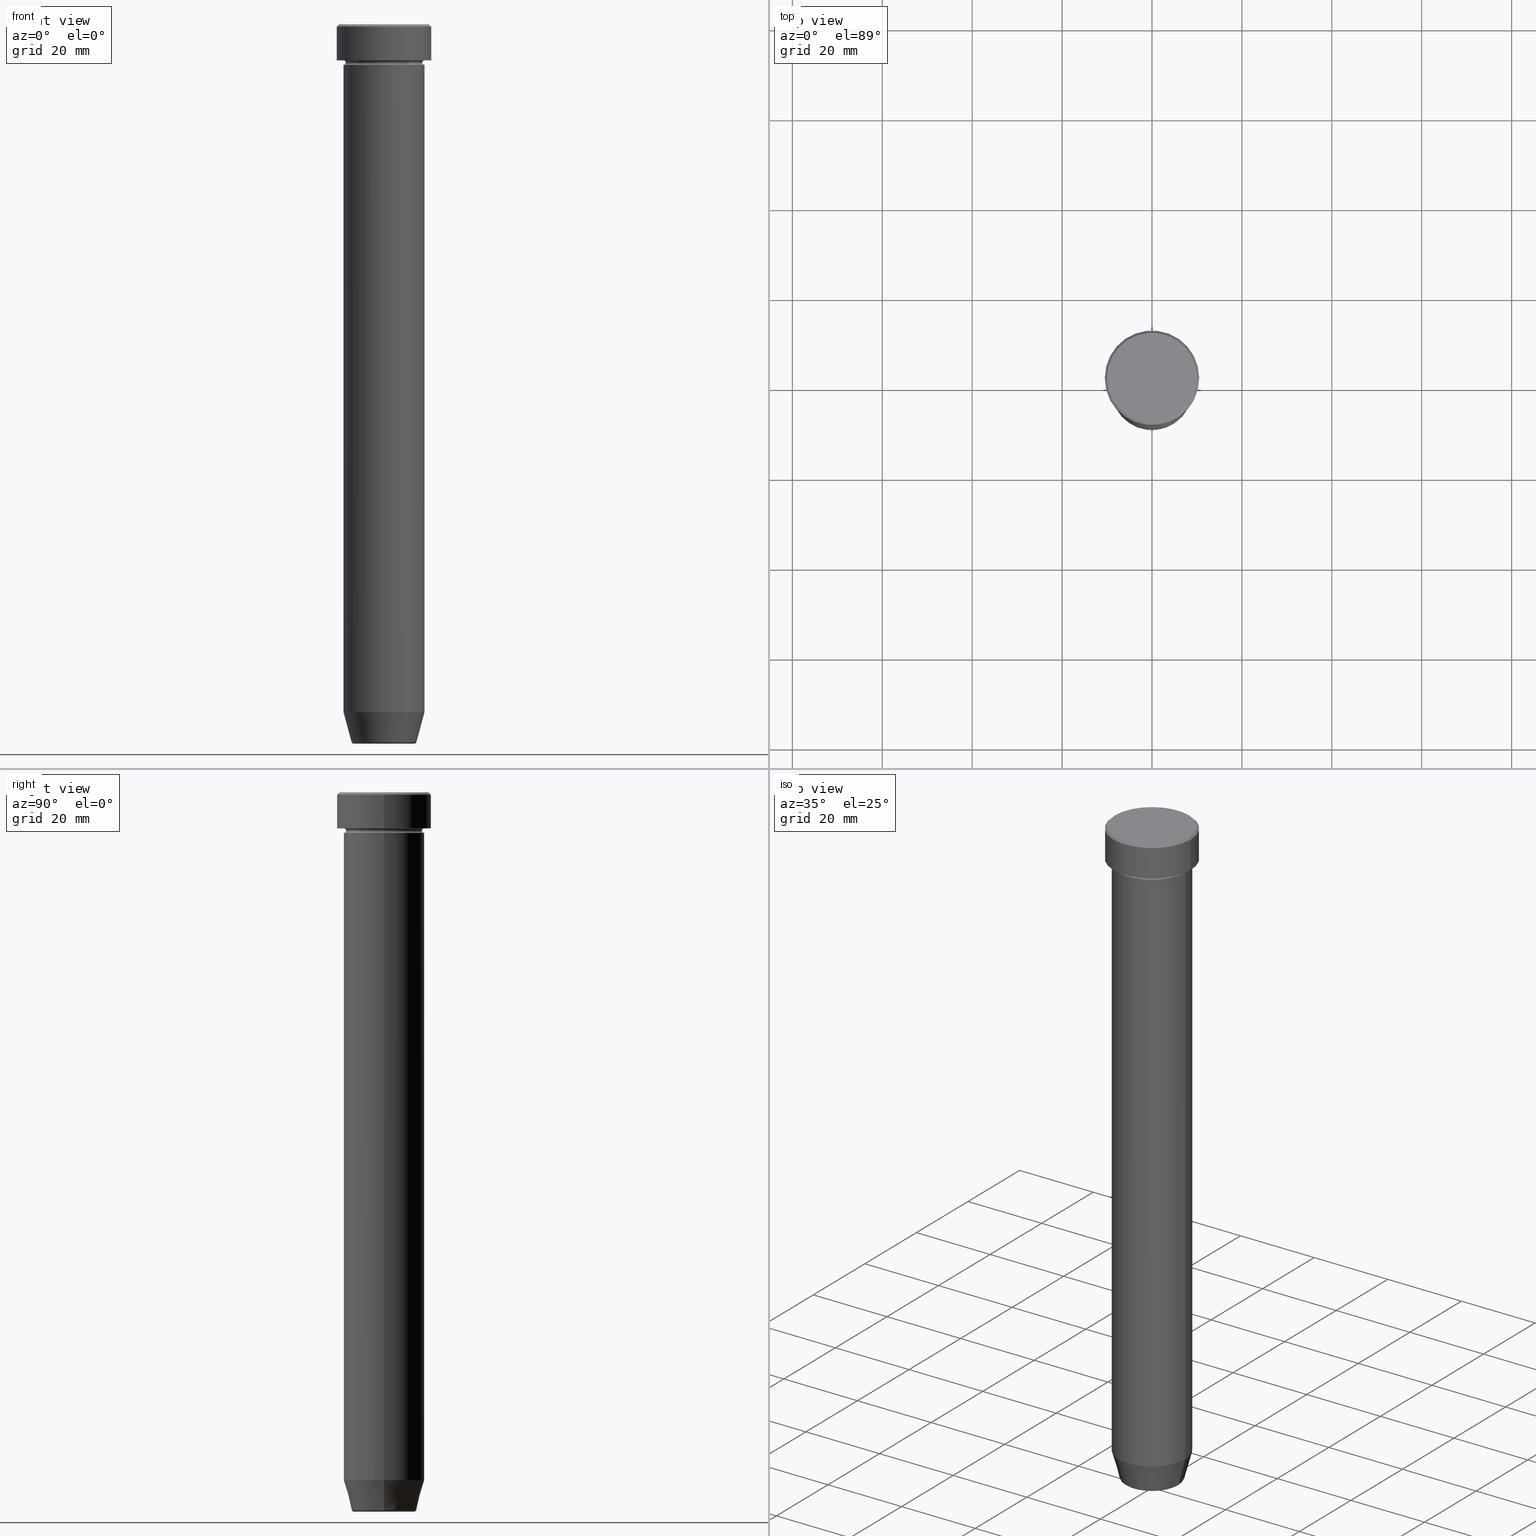
[diagram: canonical four-view strip — front | top / right | iso, engineering-drawing reading convention]
A machine part, canonical four-view strip (front | top / right | iso — engineering-drawing reading convention). The complete STEP part file that produces these views, byte-faithful:
ISO-10303-21;
HEADER;
FILE_DESCRIPTION (( 'STEP AP203' ),
    '1' );
FILE_NAME ('5149.STEP',
    '2024-01-02T22:07:08',
    ( '' ),
    ( '' ),
    'SwSTEP 2.0',
    'SolidWorks 2019',
    '' );
FILE_SCHEMA (( 'CONFIG_CONTROL_DESIGN' ));
ENDSEC;

DATA;
#1 = DIRECTION ( 'NONE',  ( -0.000000000000000000, -0.000000000000000000, 1.000000000000000000 ) ) ;
#2 = ORIENTED_EDGE ( 'NONE', *, *, #301, .F. ) ;
#3 = DIRECTION ( 'NONE',  ( -0.000000000000000000, -0.000000000000000000, 1.000000000000000000 ) ) ;
#4 = EDGE_CURVE ( 'NONE', #504, #593, #260, .T. ) ;
#5 = CARTESIAN_POINT ( 'NONE',  ( 0.000000000000000000, 0.000000000000000000, -160.0000000000000000 ) ) ;
#6 = CARTESIAN_POINT ( 'NONE',  ( 0.000000000000000000, 0.000000000000000000, -22.00000000000000000 ) ) ;
#7 = DIRECTION ( 'NONE',  ( 0.2588190451025212391, 0.000000000000000000, 0.9659258262890680902 ) ) ;
#8 = VERTEX_POINT ( 'NONE', #378 ) ;
#9 = AXIS2_PLACEMENT_3D ( 'NONE', #337, #519, #197 ) ;
#10 = CARTESIAN_POINT ( 'NONE',  ( -9.000000000000000000, 1.102182119232617714E-15, -9.000000000000001776 ) ) ;
#11 = COORDINATED_UNIVERSAL_TIME_OFFSET ( 1, 0, .AHEAD. ) ;
#12 = ADVANCED_FACE ( 'NONE', ( #192 ), #384, .F. ) ;
#13 = DIRECTION ( 'NONE',  ( 1.000000000000000000, 0.000000000000000000, 0.000000000000000000 ) ) ;
#14 = COORDINATED_UNIVERSAL_TIME_OFFSET ( 1, 0, .AHEAD. ) ;
#15 = CARTESIAN_POINT ( 'NONE',  ( 10.50000000000000000, 0.000000000000000000, -8.000000000000000000 ) ) ;
#16 = ORIENTED_EDGE ( 'NONE', *, *, #88, .T. ) ;
#17 = PERSON_AND_ORGANIZATION_ROLE ( 'design_supplier' ) ;
#18 = FACE_OUTER_BOUND ( 'NONE', #117, .T. ) ;
#19 = APPROVAL_PERSON_ORGANIZATION ( #455, #86, #39 ) ;
#20 = AXIS2_PLACEMENT_3D ( 'NONE', #241, #417, #590 ) ;
#21 = ORIENTED_EDGE ( 'NONE', *, *, #467, .T. ) ;
#22 = PLANE ( 'NONE',  #109 ) ;
#23 = ADVANCED_FACE ( 'NONE', ( #28 ), #141, .T. ) ;
#24 =( LENGTH_UNIT ( ) NAMED_UNIT ( * ) SI_UNIT ( .MILLI., .METRE. ) );
#25 = ORIENTED_EDGE ( 'NONE', *, *, #320, .F. ) ;
#26 = DIRECTION ( 'NONE',  ( 1.000000000000000000, 0.000000000000000000, 0.000000000000000000 ) ) ;
#27 = ORIENTED_EDGE ( 'NONE', *, *, #283, .T. ) ;
#28 = FACE_OUTER_BOUND ( 'NONE', #163, .T. ) ;
#29 = DIRECTION ( 'NONE',  ( 1.000000000000000000, 0.000000000000000000, 0.000000000000000000 ) ) ;
#30 = CC_DESIGN_PERSON_AND_ORGANIZATION_ASSIGNMENT ( #445, #17, ( #407 ) ) ;
#31 = FACE_OUTER_BOUND ( 'NONE', #115, .T. ) ;
#32 = CIRCLE ( 'NONE', #530, 0.5000000000000004441 ) ;
#33 = VERTEX_POINT ( 'NONE', #470 ) ;
#34 = ORIENTED_EDGE ( 'NONE', *, *, #409, .F. ) ;
#35 = EDGE_CURVE ( 'NONE', #398, #285, #134, .T. ) ;
#36 = CARTESIAN_POINT ( 'NONE',  ( 0.000000000000000000, 0.000000000000000000, -160.0000000000000000 ) ) ;
#37 = ORIENTED_EDGE ( 'NONE', *, *, #542, .F. ) ;
#38 = DIRECTION ( 'NONE',  ( -1.000000000000000000, -1.224646799147353454E-16, 0.000000000000000000 ) ) ;
#39 = APPROVAL_ROLE ( '' ) ;
#40 = CC_DESIGN_APPROVAL ( #86, ( #140 ) ) ;
#41 = AXIS2_PLACEMENT_3D ( 'NONE', #179, #538, #29 ) ;
#42 = AXIS2_PLACEMENT_3D ( 'NONE', #204, #159, #346 ) ;
#43 = ADVANCED_FACE ( 'NONE', ( #282 ), #588, .F. ) ;
#44 = CARTESIAN_POINT ( 'NONE',  ( 0.000000000000000000, 0.000000000000000000, -22.00000000000000000 ) ) ;
#45 = CARTESIAN_POINT ( 'NONE',  ( 9.000000000000000000, 0.000000000000000000, -8.500000000000000000 ) ) ;
#46 = ORIENTED_EDGE ( 'NONE', *, *, #343, .F. ) ;
#47 = ORGANIZATION ( 'NEUR�EN�', 'NEUR�EN�', '' ) ;
#48 = DIRECTION ( 'NONE',  ( 1.000000000000000000, 0.000000000000000000, 0.000000000000000000 ) ) ;
#49 = ADVANCED_FACE ( 'NONE', ( #253 ), #437, .T. ) ;
#50 = CIRCLE ( 'NONE', #143, 10.00000000000000178 ) ;
#51 = DIRECTION ( 'NONE',  ( -0.000000000000000000, -0.000000000000000000, 1.000000000000000000 ) ) ;
#52 = ORIENTED_EDGE ( 'NONE', *, *, #315, .T. ) ;
#53 = DIRECTION ( 'NONE',  ( 0.000000000000000000, 0.000000000000000000, -1.000000000000000000 ) ) ;
#54 = CARTESIAN_POINT ( 'NONE',  ( 0.000000000000000000, 0.000000000000000000, 0.000000000000000000 ) ) ;
#55 = DIRECTION ( 'NONE',  ( 1.000000000000000000, 0.000000000000000000, 0.000000000000000000 ) ) ;
#56 = DIRECTION ( 'NONE',  ( -1.000000000000000000, 0.000000000000000000, 0.000000000000000000 ) ) ;
#57 = DIRECTION ( 'NONE',  ( -0.000000000000000000, -0.000000000000000000, 1.000000000000000000 ) ) ;
#58 = EDGE_CURVE ( 'NONE', #226, #129, #527, .T. ) ;
#59 = DATE_TIME_ROLE ( 'creation_date' ) ;
#60 = AXIS2_PLACEMENT_3D ( 'NONE', #391, #66, #573 ) ;
#61 = AXIS2_PLACEMENT_3D ( 'NONE', #44, #286, #215 ) ;
#62 = CARTESIAN_POINT ( 'NONE',  ( 0.000000000000000000, 0.000000000000000000, -152.9999999999999716 ) ) ;
#63 = AXIS2_PLACEMENT_3D ( 'NONE', #446, #574, #399 ) ;
#64 = DIRECTION ( 'NONE',  ( -0.000000000000000000, -0.000000000000000000, 1.000000000000000000 ) ) ;
#65 = DIRECTION ( 'NONE',  ( -0.000000000000000000, -0.000000000000000000, 1.000000000000000000 ) ) ;
#66 = DIRECTION ( 'NONE',  ( 0.000000000000000000, 0.000000000000000000, -1.000000000000000000 ) ) ;
#67 = FACE_BOUND ( 'NONE', #211, .T. ) ;
#68 = CARTESIAN_POINT ( 'NONE',  ( 0.000000000000000000, 0.000000000000000000, -8.500000000000000000 ) ) ;
#69 = LINE ( 'NONE', #370, #200 ) ;
#70 = CC_DESIGN_PERSON_AND_ORGANIZATION_ASSIGNMENT ( #104, #266, ( #127 ) ) ;
#71 = CARTESIAN_POINT ( 'NONE',  ( -9.000000000000000000, 1.102182119232617714E-15, -152.9999999999999716 ) ) ;
#72 = ORIENTED_EDGE ( 'NONE', *, *, #225, .T. ) ;
#73 = CARTESIAN_POINT ( 'NONE',  ( 9.000000000000000000, 0.000000000000000000, 0.000000000000000000 ) ) ;
#74 = COORDINATED_UNIVERSAL_TIME_OFFSET ( 1, 0, .AHEAD. ) ;
#75 = DIRECTION ( 'NONE',  ( -0.000000000000000000, -0.000000000000000000, 1.000000000000000000 ) ) ;
#76 = ADVANCED_FACE ( 'NONE', ( #335 ), #388, .F. ) ;
#77 = ORIENTED_EDGE ( 'NONE', *, *, #167, .T. ) ;
#78 = ORIENTED_EDGE ( 'NONE', *, *, #374, .T. ) ;
#79 = CARTESIAN_POINT ( 'NONE',  ( 0.000000000000000000, 0.000000000000000000, -22.00000000000000000 ) ) ;
#80 = AXIS2_PLACEMENT_3D ( 'NONE', #45, #418, #514 ) ;
#81 = VERTEX_POINT ( 'NONE', #10 ) ;
#82 = CC_DESIGN_SECURITY_CLASSIFICATION ( #140, ( #407 ) ) ;
#83 = AXIS2_PLACEMENT_3D ( 'NONE', #353, #558, #304 ) ;
#84 = APPROVAL_DATE_TIME ( #324, #86 ) ;
#85 = CIRCLE ( 'NONE', #63, 6.740692158992650285 ) ;
#86 = APPROVAL ( #539, 'NEUR�EN�' ) ;
#87 = CARTESIAN_POINT ( 'NONE',  ( 0.000000000000000000, 0.000000000000000000, 0.000000000000000000 ) ) ;
#88 = EDGE_CURVE ( 'NONE', #8, #454, #199, .T. ) ;
#89 = AXIS2_PLACEMENT_3D ( 'NONE', #5, #53, #390 ) ;
#90 = DIRECTION ( 'NONE',  ( 0.000000000000000000, 0.000000000000000000, -1.000000000000000000 ) ) ;
#91 = EDGE_LOOP ( 'NONE', ( #95, #169, #480, #444 ) ) ;
#92 = DIRECTION ( 'NONE',  ( -1.000000000000000000, 0.000000000000000000, -0.000000000000000000 ) ) ;
#93 = VERTEX_POINT ( 'NONE', #427 ) ;
#94 = ADVANCED_FACE ( 'NONE', ( #570 ), #269, .T. ) ;
#95 = ORIENTED_EDGE ( 'NONE', *, *, #439, .F. ) ;
#96 = PLANE ( 'NONE',  #350 ) ;
#97 = VERTEX_POINT ( 'NONE', #484 ) ;
#98 = CARTESIAN_POINT ( 'NONE',  ( -9.000000000000000000, 0.000000000000000000, -8.500000000000000000 ) ) ;
#99 = CARTESIAN_POINT ( 'NONE',  ( 0.000000000000000000, 0.000000000000000000, -8.000000000000000000 ) ) ;
#100 = ORIENTED_EDGE ( 'NONE', *, *, #456, .T. ) ;
#101 = CARTESIAN_POINT ( 'NONE',  ( -6.740692158992650285, 8.254967076548010394E-16, -159.5000000000000000 ) ) ;
#102 = ORIENTED_EDGE ( 'NONE', *, *, #333, .T. ) ;
#103 = ORIENTED_EDGE ( 'NONE', *, *, #301, .T. ) ;
#104 = PERSON_AND_ORGANIZATION ( #183, #47 ) ;
#105 = ORIENTED_EDGE ( 'NONE', *, *, #550, .F. ) ;
#106 = DIRECTION ( 'NONE',  ( -1.000000000000000000, 1.224646799147351482E-16, 0.000000000000000000 ) ) ;
#107 = ADVANCED_FACE ( 'NONE', ( #293 ), #516, .T. ) ;
#108 = APPROVAL_ROLE ( '' ) ;
#109 = AXIS2_PLACEMENT_3D ( 'NONE', #402, #90, #92 ) ;
#110 = CARTESIAN_POINT ( 'NONE',  ( 8.499999999999998224, 0.000000000000000000, -8.500000000000000000 ) ) ;
#111 = CIRCLE ( 'NONE', #42, 10.50000000000000000 ) ;
#112 = ORIENTED_EDGE ( 'NONE', *, *, #578, .F. ) ;
#113 = ORIENTED_EDGE ( 'NONE', *, *, #491, .T. ) ;
#114 =( NAMED_UNIT ( * ) PLANE_ANGLE_UNIT ( ) SI_UNIT ( $, .RADIAN. ) );
#115 = EDGE_LOOP ( 'NONE', ( #309, #495, #231, #466 ) ) ;
#116 = DIRECTION ( 'NONE',  ( -0.000000000000000000, -0.000000000000000000, 1.000000000000000000 ) ) ;
#117 = EDGE_LOOP ( 'NONE', ( #136, #166, #139, #582 ) ) ;
#118 = APPLICATION_PROTOCOL_DEFINITION ( 'international standard', 'config_control_design', 1994, #364 ) ;
#119 = EDGE_CURVE ( 'NONE', #81, #97, #229, .T. ) ;
#120 = CARTESIAN_POINT ( 'NONE',  ( 0.000000000000000000, 0.000000000000000000, 0.000000000000000000 ) ) ;
#121 = COORDINATED_UNIVERSAL_TIME_OFFSET ( 1, 0, .AHEAD. ) ;
#122 = ORIENTED_EDGE ( 'NONE', *, *, #566, .T. ) ;
#123 = CARTESIAN_POINT ( 'NONE',  ( -9.000000000000000000, 1.102182119232617714E-15, 0.000000000000000000 ) ) ;
#124 = VECTOR ( 'NONE', #276, 1000.000000000000000 ) ;
#125 = ORIENTED_EDGE ( 'NONE', *, *, #58, .T. ) ;
#126 = CARTESIAN_POINT ( 'NONE',  ( 10.00000000000000178, 1.224646799147353454E-15, 0.000000000000000000 ) ) ;
#127 = PRODUCT_DEFINITION ( 'NEZN�M�', '', #407, #373 ) ;
#128 = CARTESIAN_POINT ( 'NONE',  ( 10.50000000000000000, 0.000000000000000000, -0.5000000000000023315 ) ) ;
#129 = VERTEX_POINT ( 'NONE', #265 ) ;
#130 = CALENDAR_DATE ( 2024, 2, 1 ) ;
#131 = DIRECTION ( 'NONE',  ( -0.000000000000000000, -0.000000000000000000, 1.000000000000000000 ) ) ;
#132 = TOROIDAL_SURFACE ( 'NONE', #397, 9.000000000000000000, 0.5000000000000000000 ) ;
#133 = ORIENTED_EDGE ( 'NONE', *, *, #333, .F. ) ;
#134 = CIRCLE ( 'NONE', #41, 9.000000000000000000 ) ;
#135 = CIRCLE ( 'NONE', #599, 9.000000000000000000 ) ;
#136 = ORIENTED_EDGE ( 'NONE', *, *, #546, .T. ) ;
#137 = DATE_AND_TIME ( #177, #336 ) ;
#138 = EDGE_CURVE ( 'NONE', #547, #222, #598, .T. ) ;
#139 = ORIENTED_EDGE ( 'NONE', *, *, #274, .T. ) ;
#140 = SECURITY_CLASSIFICATION ( '', '', #368 ) ;
#141 = TOROIDAL_SURFACE ( 'NONE', #20, 6.740692158992650285, 0.5000000000000000000 ) ;
#142 = CARTESIAN_POINT ( 'NONE',  ( -10.50000000000000000, 1.285879139104720831E-15, -8.000000000000000000 ) ) ;
#143 = AXIS2_PLACEMENT_3D ( 'NONE', #261, #440, #13 ) ;
#144 = EDGE_CURVE ( 'NONE', #367, #81, #157, .T. ) ;
#145 = DIRECTION ( 'NONE',  ( -0.000000000000000000, -0.000000000000000000, 1.000000000000000000 ) ) ;
#146 = ORIENTED_EDGE ( 'NONE', *, *, #225, .F. ) ;
#147 = LINE ( 'NONE', #557, #499 ) ;
#148 = CARTESIAN_POINT ( 'NONE',  ( 0.000000000000000000, 0.000000000000000000, -9.000000000000001776 ) ) ;
#149 = PRODUCT_DEFINITION_SHAPE ( 'NONE', 'NONE',  #127 ) ;
#150 = AXIS2_PLACEMENT_3D ( 'NONE', #158, #154, #403 ) ;
#151 = CARTESIAN_POINT ( 'NONE',  ( 9.000000000000000000, 1.102182119232617714E-15, -8.500000000000000000 ) ) ;
#152 = CARTESIAN_POINT ( 'NONE',  ( -7.124355652982127474, 8.724819346411914255E-16, -160.0000000000000000 ) ) ;
#153 = CARTESIAN_POINT ( 'NONE',  ( 9.000000000000000000, 1.102182119232617714E-15, -8.000000000000000000 ) ) ;
#154 = DIRECTION ( 'NONE',  ( 0.000000000000000000, 0.000000000000000000, 1.000000000000000000 ) ) ;
#155 = MANIFOLD_SOLID_BREP ( 'Zaoblit4', #561 ) ;
#156 = EDGE_CURVE ( 'NONE', #593, #393, #352, .T. ) ;
#157 = LINE ( 'NONE', #248, #300 ) ;
#158 = CARTESIAN_POINT ( 'NONE',  ( 0.000000000000000000, 0.000000000000000000, 0.000000000000000000 ) ) ;
#159 = DIRECTION ( 'NONE',  ( 0.000000000000000000, 0.000000000000000000, -1.000000000000000000 ) ) ;
#160 = CARTESIAN_POINT ( 'NONE',  ( 0.000000000000000000, 0.000000000000000000, 0.000000000000000000 ) ) ;
#161 = PERSON_AND_ORGANIZATION_ROLE ( 'creator' ) ;
#162 = CIRCLE ( 'NONE', #563, 0.5000000000000004441 ) ;
#163 = EDGE_LOOP ( 'NONE', ( #146, #25, #432, #187 ) ) ;
#164 = CARTESIAN_POINT ( 'NONE',  ( -10.00000000000000178, 0.000000000000000000, 0.000000000000000000 ) ) ;
#165 = VECTOR ( 'NONE', #233, 1000.000000000000000 ) ;
#166 = ORIENTED_EDGE ( 'NONE', *, *, #447, .T. ) ;
#167 = EDGE_CURVE ( 'NONE', #129, #547, #174, .T. ) ;
#168 = DIRECTION ( 'NONE',  ( -0.000000000000000000, -0.000000000000000000, 1.000000000000000000 ) ) ;
#169 = ORIENTED_EDGE ( 'NONE', *, *, #505, .T. ) ;
#170 =( NAMED_UNIT ( * ) SI_UNIT ( $, .STERADIAN. ) SOLID_ANGLE_UNIT ( ) );
#171 = DIRECTION ( 'NONE',  ( -1.000000000000000000, 0.000000000000000000, 0.000000000000000000 ) ) ;
#172 = ORIENTED_EDGE ( 'NONE', *, *, #181, .T. ) ;
#173 = DIRECTION ( 'NONE',  ( 0.000000000000000000, 0.000000000000000000, -1.000000000000000000 ) ) ;
#174 = CIRCLE ( 'NONE', #581, 0.5000000000000004441 ) ;
#175 = DIRECTION ( 'NONE',  ( 1.000000000000000000, 0.000000000000000000, 0.000000000000000000 ) ) ;
#176 = ORIENTED_EDGE ( 'NONE', *, *, #566, .F. ) ;
#177 = CALENDAR_DATE ( 2024, 2, 1 ) ;
#178 = CARTESIAN_POINT ( 'NONE',  ( -9.000000000000000000, 1.102182119232617714E-15, -22.00000000000000000 ) ) ;
#179 = CARTESIAN_POINT ( 'NONE',  ( 0.000000000000000000, 0.000000000000000000, -22.00000000000000000 ) ) ;
#180 = AXIS2_PLACEMENT_3D ( 'NONE', #160, #339, #394 ) ;
#181 = EDGE_CURVE ( 'NONE', #408, #367, #303, .T. ) ;
#182 = ORIENTED_EDGE ( 'NONE', *, *, #138, .T. ) ;
#183 = PERSON ( 'NEUR�EN�', 'NEUR�EN�', 'NEUR�EN�', ('NEUR�EN�'), ('NEUR�EN�'), ('NEUR�EN�') ) ;
#184 = CARTESIAN_POINT ( 'NONE',  ( -6.740692158992650285, 8.550696569392675821E-16, -160.0000000000000000 ) ) ;
#185 = ADVANCED_FACE ( 'NONE', ( #342 ), #531, .T. ) ;
#186 = AXIS2_PLACEMENT_3D ( 'NONE', #321, #145, #194 ) ;
#187 = ORIENTED_EDGE ( 'NONE', *, *, #315, .F. ) ;
#188 = CYLINDRICAL_SURFACE ( 'NONE', #325, 9.000000000000000000 ) ;
#189 = AXIS2_PLACEMENT_3D ( 'NONE', #385, #65, #565 ) ;
#190 = CC_DESIGN_PERSON_AND_ORGANIZATION_ASSIGNMENT ( #544, #232, ( #140 ) ) ;
#191 = LINE ( 'NONE', #471, #277 ) ;
#192 = FACE_OUTER_BOUND ( 'NONE', #498, .T. ) ;
#193 = DIRECTION ( 'NONE',  ( 1.000000000000000000, 0.000000000000000000, 0.000000000000000000 ) ) ;
#194 = DIRECTION ( 'NONE',  ( 1.000000000000000000, 0.000000000000000000, 0.000000000000000000 ) ) ;
#195 = CYLINDRICAL_SURFACE ( 'NONE', #189, 10.50000000000000000 ) ;
#196 = CIRCLE ( 'NONE', #474, 7.223655072137178834 ) ;
#197 = DIRECTION ( 'NONE',  ( 1.000000000000000000, 0.000000000000000000, 0.000000000000000000 ) ) ;
#198 = ADVANCED_FACE ( 'NONE', ( #523 ), #195, .T. ) ;
#199 = CIRCLE ( 'NONE', #517, 10.00000000000000178 ) ;
#200 = VECTOR ( 'NONE', #545, 1000.000000000000000 ) ;
#201 = CARTESIAN_POINT ( 'NONE',  ( 0.000000000000000000, 0.000000000000000000, 0.000000000000000000 ) ) ;
#202 = ORIENTED_EDGE ( 'NONE', *, *, #447, .F. ) ;
#203 = APPROVAL_STATUS ( 'not_yet_approved' ) ;
#204 = CARTESIAN_POINT ( 'NONE',  ( 0.000000000000000000, 0.000000000000000000, -0.5000000000000023315 ) ) ;
#205 = ORIENTED_EDGE ( 'NONE', *, *, #167, .F. ) ;
#206 = CARTESIAN_POINT ( 'NONE',  ( 0.000000000000000000, 0.000000000000000000, -0.5000000000000023315 ) ) ;
#207 = EDGE_CURVE ( 'NONE', #8, #534, #562, .T. ) ;
#208 = EDGE_LOOP ( 'NONE', ( #413, #316, #405, #205 ) ) ;
#209 = UNCERTAINTY_MEASURE_WITH_UNIT (LENGTH_MEASURE( 1.000000000000000082E-05 ), #24, 'distance_accuracy_value', 'NONE');
#210 = CALENDAR_DATE ( 2024, 2, 1 ) ;
#211 = EDGE_LOOP ( 'NONE', ( #182, #360 ) ) ;
#212 =( GEOMETRIC_REPRESENTATION_CONTEXT ( 3 ) GLOBAL_UNCERTAINTY_ASSIGNED_CONTEXT ( ( #209 ) ) GLOBAL_UNIT_ASSIGNED_CONTEXT ( ( #24, #114, #170 ) ) REPRESENTATION_CONTEXT ( 'NONE', 'WORKASPACE' ) );
#213 = CARTESIAN_POINT ( 'NONE',  ( 0.000000000000000000, 0.000000000000000000, -159.6294095225512706 ) ) ;
#214 = CONICAL_SURFACE ( 'NONE', #507, 7.124355652982127474, 0.2617993877991499629 ) ;
#215 = DIRECTION ( 'NONE',  ( -1.000000000000000000, 0.000000000000000000, -0.000000000000000000 ) ) ;
#216 = ORIENTED_EDGE ( 'NONE', *, *, #467, .F. ) ;
#217 = DIRECTION ( 'NONE',  ( 1.000000000000000000, 0.000000000000000000, 0.000000000000000000 ) ) ;
#218 = LINE ( 'NONE', #73, #124 ) ;
#219 = ORIENTED_EDGE ( 'NONE', *, *, #546, .F. ) ;
#220 = APPROVAL_ROLE ( '' ) ;
#221 = EDGE_LOOP ( 'NONE', ( #202, #122, #569, #584 ) ) ;
#222 = VERTEX_POINT ( 'NONE', #153 ) ;
#223 = DIRECTION ( 'NONE',  ( -0.000000000000000000, -0.000000000000000000, 1.000000000000000000 ) ) ;
#224 = EDGE_LOOP ( 'NONE', ( #369, #78, #2, #34 ) ) ;
#225 = EDGE_CURVE ( 'NONE', #528, #504, #327, .T. ) ;
#226 = VERTEX_POINT ( 'NONE', #110 ) ;
#227 = CARTESIAN_POINT ( 'NONE',  ( 0.000000000000000000, 0.000000000000000000, -8.500000000000000000 ) ) ;
#228 = CC_DESIGN_APPROVAL ( #236, ( #127 ) ) ;
#229 = CIRCLE ( 'NONE', #280, 9.000000000000000000 ) ;
#230 = CIRCLE ( 'NONE', #572, 9.000000000000000000 ) ;
#231 = ORIENTED_EDGE ( 'NONE', *, *, #207, .T. ) ;
#232 = PERSON_AND_ORGANIZATION_ROLE ( 'classification_officer' ) ;
#233 = DIRECTION ( 'NONE',  ( -0.000000000000000000, -0.000000000000000000, 1.000000000000000000 ) ) ;
#234 = CARTESIAN_POINT ( 'NONE',  ( -10.50000000000000000, 1.285879139104720831E-15, -0.5000000000000023315 ) ) ;
#235 = EDGE_LOOP ( 'NONE', ( #426, #112 ) ) ;
#236 = APPROVAL ( #345, 'NEUR�EN�' ) ;
#237 = AXIS2_PLACEMENT_3D ( 'NONE', #328, #596, #591 ) ;
#238 = CLOSED_SHELL ( 'NONE', ( #592, #382, #76, #49, #326, #185, #529, #198, #422, #509, #511, #586, #366 ) ) ;
#239 = CIRCLE ( 'NONE', #595, 9.000000000000000000 ) ;
#240 = ORIENTED_EDGE ( 'NONE', *, *, #542, .T. ) ;
#241 = CARTESIAN_POINT ( 'NONE',  ( 0.000000000000000000, 0.000000000000000000, -159.5000000000000000 ) ) ;
#242 = CC_DESIGN_PERSON_AND_ORGANIZATION_ASSIGNMENT ( #306, #483, ( #594 ) ) ;
#243 = CARTESIAN_POINT ( 'NONE',  ( -9.000000000000000000, 1.102182119232617714E-15, -8.500000000000000000 ) ) ;
#244 = CONICAL_SURFACE ( 'NONE', #60, 10.00000000000000178, 0.7853981633974447263 ) ;
#245 = FACE_OUTER_BOUND ( 'NONE', #465, .T. ) ;
#246 = ORIENTED_EDGE ( 'NONE', *, *, #4, .T. ) ;
#247 = CIRCLE ( 'NONE', #377, 9.000000000000000000 ) ;
#248 = CARTESIAN_POINT ( 'NONE',  ( -9.000000000000000000, 1.102182119232617714E-15, 0.000000000000000000 ) ) ;
#249 = CARTESIAN_POINT ( 'NONE',  ( 0.000000000000000000, 0.000000000000000000, -8.000000000000000000 ) ) ;
#250 = EDGE_LOOP ( 'NONE', ( #329, #100 ) ) ;
#251 = DIRECTION ( 'NONE',  ( -0.000000000000000000, -1.000000000000000000, -0.000000000000000000 ) ) ;
#252 = EDGE_CURVE ( 'NONE', #454, #8, #50, .T. ) ;
#253 = FACE_OUTER_BOUND ( 'NONE', #502, .T. ) ;
#254 = FACE_OUTER_BOUND ( 'NONE', #344, .T. ) ;
#255 = EDGE_LOOP ( 'NONE', ( #522, #52, #21, #462 ) ) ;
#256 = CARTESIAN_POINT ( 'NONE',  ( 0.000000000000000000, 0.000000000000000000, -8.500000000000000000 ) ) ;
#257 = CIRCLE ( 'NONE', #9, 10.50000000000000000 ) ;
#258 = DIRECTION ( 'NONE',  ( -1.000000000000000000, 0.000000000000000000, 0.000000000000000000 ) ) ;
#259 = AXIS2_PLACEMENT_3D ( 'NONE', #101, #296, #106 ) ;
#260 = LINE ( 'NONE', #152, #311 ) ;
#261 = CARTESIAN_POINT ( 'NONE',  ( 0.000000000000000000, 0.000000000000000000, 0.000000000000000000 ) ) ;
#262 = VERTEX_POINT ( 'NONE', #15 ) ;
#263 = PERSON_AND_ORGANIZATION ( #183, #47 ) ;
#264 = EDGE_CURVE ( 'NONE', #376, #534, #111, .T. ) ;
#265 = CARTESIAN_POINT ( 'NONE',  ( -8.499999999999998224, 1.071565949253933927E-15, -8.500000000000000000 ) ) ;
#266 = PERSON_AND_ORGANIZATION_ROLE ( 'creator' ) ;
#267 = DIRECTION ( 'NONE',  ( -1.000000000000000000, 0.000000000000000000, 0.000000000000000000 ) ) ;
#268 = FACE_OUTER_BOUND ( 'NONE', #356, .T. ) ;
#269 = TOROIDAL_SURFACE ( 'NONE', #361, 6.740692158992650285, 0.5000000000000000000 ) ;
#270 = CARTESIAN_POINT ( 'NONE',  ( 0.000000000000000000, 0.000000000000000000, -152.9999999999999716 ) ) ;
#271 = APPLICATION_PROTOCOL_DEFINITION ( 'international standard', 'config_control_design', 1994, #567 ) ;
#272 = EDGE_LOOP ( 'NONE', ( #240, #246, #459, #216 ) ) ;
#273 = DIRECTION ( 'NONE',  ( 1.000000000000000000, 0.000000000000000000, 0.000000000000000000 ) ) ;
#274 = EDGE_CURVE ( 'NONE', #534, #376, #362, .T. ) ;
#275 = DATE_TIME_ROLE ( 'classification_date' ) ;
#276 = DIRECTION ( 'NONE',  ( -0.000000000000000000, -0.000000000000000000, 1.000000000000000000 ) ) ;
#277 = VECTOR ( 'NONE', #7, 1000.000000000000114 ) ;
#278 = DIRECTION ( 'NONE',  ( -0.000000000000000000, -0.000000000000000000, 1.000000000000000000 ) ) ;
#279 = CIRCLE ( 'NONE', #379, 0.5000000000000004441 ) ;
#280 = AXIS2_PLACEMENT_3D ( 'NONE', #148, #51, #396 ) ;
#281 = AXIS2_PLACEMENT_3D ( 'NONE', #120, #75, #175 ) ;
#282 = FACE_OUTER_BOUND ( 'NONE', #250, .T. ) ;
#283 = EDGE_CURVE ( 'NONE', #454, #376, #317, .T. ) ;
#284 = CARTESIAN_POINT ( 'NONE',  ( 0.000000000000000000, 0.000000000000000000, -159.6294095225512706 ) ) ;
#285 = VERTEX_POINT ( 'NONE', #501 ) ;
#286 = DIRECTION ( 'NONE',  ( 0.000000000000000000, 0.000000000000000000, -1.000000000000000000 ) ) ;
#287 = APPROVAL_PERSON_ORGANIZATION ( #438, #428, #108 ) ;
#288 = TOROIDAL_SURFACE ( 'NONE', #237, 9.000000000000000000, 0.5000000000000000000 ) ;
#289 = FACE_OUTER_BOUND ( 'NONE', #224, .T. ) ;
#290 = CARTESIAN_POINT ( 'NONE',  ( -7.223655072137179722, 9.934123627281759193E-16, -159.6294095225512706 ) ) ;
#291 = DIRECTION ( 'NONE',  ( -0.000000000000000000, -0.000000000000000000, 1.000000000000000000 ) ) ;
#292 = ADVANCED_FACE ( 'NONE', ( #585 ), #487, .T. ) ;
#293 = FACE_OUTER_BOUND ( 'NONE', #485, .T. ) ;
#294 = ORIENTED_EDGE ( 'NONE', *, *, #35, .T. ) ;
#295 = DIRECTION ( 'NONE',  ( -0.000000000000000000, -0.000000000000000000, 1.000000000000000000 ) ) ;
#296 = DIRECTION ( 'NONE',  ( 1.224646799147353207E-16, 1.000000000000000000, 0.000000000000000000 ) ) ;
#297 = DATE_AND_TIME ( #497, #310 ) ;
#298 = ORIENTED_EDGE ( 'NONE', *, *, #144, .F. ) ;
#299 = DIRECTION ( 'NONE',  ( -0.7071067811865450192, 0.000000000000000000, -0.7071067811865500152 ) ) ;
#300 = VECTOR ( 'NONE', #564, 1000.000000000000000 ) ;
#301 = EDGE_CURVE ( 'NONE', #285, #398, #230, .T. ) ;
#302 = CALENDAR_DATE ( 2024, 2, 1 ) ;
#303 = CIRCLE ( 'NONE', #380, 9.000000000000000000 ) ;
#304 = DIRECTION ( 'NONE',  ( -1.000000000000000000, 0.000000000000000000, 0.000000000000000000 ) ) ;
#305 = EDGE_LOOP ( 'NONE', ( #219, #176 ) ) ;
#306 = PERSON_AND_ORGANIZATION ( #183, #47 ) ;
#307 = DIRECTION ( 'NONE',  ( 0.000000000000000000, 0.000000000000000000, -1.000000000000000000 ) ) ;
#308 = DATE_AND_TIME ( #210, #448 ) ;
#309 = ORIENTED_EDGE ( 'NONE', *, *, #283, .F. ) ;
#310 = LOCAL_TIME ( 23, 7, 8.000000000000000000, #11 ) ;
#311 = VECTOR ( 'NONE', #331, 1000.000000000000114 ) ;
#312 = DIRECTION ( 'NONE',  ( 1.000000000000000000, 0.000000000000000000, 0.000000000000000000 ) ) ;
#313 = CIRCLE ( 'NONE', #460, 7.223655072137178834 ) ;
#314 = DIRECTION ( 'NONE',  ( -0.000000000000000000, -0.000000000000000000, 1.000000000000000000 ) ) ;
#315 = EDGE_CURVE ( 'NONE', #504, #33, #313, .T. ) ;
#316 = ORIENTED_EDGE ( 'NONE', *, *, #550, .T. ) ;
#317 = LINE ( 'NONE', #126, #510 ) ;
#318 = CC_DESIGN_PERSON_AND_ORGANIZATION_ASSIGNMENT ( #263, #161, ( #407 ) ) ;
#319 = CARTESIAN_POINT ( 'NONE',  ( -9.000000000000000000, 1.102182119232617714E-15, -22.00000000000000000 ) ) ;
#320 = EDGE_CURVE ( 'NONE', #93, #528, #85, .T. ) ;
#321 = CARTESIAN_POINT ( 'NONE',  ( 0.000000000000000000, 0.000000000000000000, -8.500000000000000000 ) ) ;
#322 = AXIS2_PLACEMENT_3D ( 'NONE', #387, #307, #334 ) ;
#323 = ADVANCED_BREP_SHAPE_REPRESENTATION ( '5149', ( #372, #155, #150 ), #212 ) ;
#324 = DATE_AND_TIME ( #130, #552 ) ;
#325 = AXIS2_PLACEMENT_3D ( 'NONE', #476, #479, #381 ) ;
#326 = ADVANCED_FACE ( 'NONE', ( #18 ), #359, .T. ) ;
#327 = CIRCLE ( 'NONE', #259, 0.5000000000000004441 ) ;
#328 = CARTESIAN_POINT ( 'NONE',  ( 0.000000000000000000, 0.000000000000000000, -8.500000000000000000 ) ) ;
#329 = ORIENTED_EDGE ( 'NONE', *, *, #320, .T. ) ;
#330 = CYLINDRICAL_SURFACE ( 'NONE', #597, 9.000000000000000000 ) ;
#331 = DIRECTION ( 'NONE',  ( -0.2588190451025212391, 3.169619151431771721E-17, 0.9659258262890680902 ) ) ;
#332 = DIRECTION ( 'NONE',  ( -0.000000000000000000, -0.000000000000000000, 1.000000000000000000 ) ) ;
#333 = EDGE_CURVE ( 'NONE', #408, #97, #218, .T. ) ;
#334 = DIRECTION ( 'NONE',  ( -1.000000000000000000, 0.000000000000000000, -0.000000000000000000 ) ) ;
#335 = FACE_OUTER_BOUND ( 'NONE', #91, .T. ) ;
#336 = LOCAL_TIME ( 23, 7, 8.000000000000000000, #74 ) ;
#337 = CARTESIAN_POINT ( 'NONE',  ( 0.000000000000000000, 0.000000000000000000, -8.000000000000000000 ) ) ;
#338 = DIRECTION ( 'NONE',  ( -0.000000000000000000, -0.000000000000000000, 1.000000000000000000 ) ) ;
#339 = DIRECTION ( 'NONE',  ( -0.000000000000000000, -0.000000000000000000, 1.000000000000000000 ) ) ;
#340 = APPROVAL_DATE_TIME ( #308, #236 ) ;
#341 = ORIENTED_EDGE ( 'NONE', *, *, #207, .F. ) ;
#342 = FACE_OUTER_BOUND ( 'NONE', #235, .T. ) ;
#343 = EDGE_CURVE ( 'NONE', #93, #33, #32, .T. ) ;
#344 = EDGE_LOOP ( 'NONE', ( #298, #526, #102, #575 ) ) ;
#345 = APPROVAL_STATUS ( 'not_yet_approved' ) ;
#346 = DIRECTION ( 'NONE',  ( 1.000000000000000000, 0.000000000000000000, 0.000000000000000000 ) ) ;
#347 = ORIENTED_EDGE ( 'NONE', *, *, #358, .T. ) ;
#348 = AXIS2_PLACEMENT_3D ( 'NONE', #227, #173, #583 ) ;
#349 = ORIENTED_EDGE ( 'NONE', *, *, #274, .F. ) ;
#350 = AXIS2_PLACEMENT_3D ( 'NONE', #431, #375, #48 ) ;
#351 = ORIENTED_EDGE ( 'NONE', *, *, #482, .F. ) ;
#352 = CIRCLE ( 'NONE', #415, 9.000000000000000000 ) ;
#353 = CARTESIAN_POINT ( 'NONE',  ( 0.000000000000000000, 0.000000000000000000, -8.000000000000000000 ) ) ;
#354 = ORIENTED_EDGE ( 'NONE', *, *, #374, .F. ) ;
#355 = DIRECTION ( 'NONE',  ( 0.000000000000000000, 0.000000000000000000, -1.000000000000000000 ) ) ;
#356 = EDGE_LOOP ( 'NONE', ( #449, #27, #349, #341 ) ) ;
#357 = EDGE_LOOP ( 'NONE', ( #451, #500, #113, #347 ) ) ;
#358 = EDGE_CURVE ( 'NONE', #97, #81, #135, .T. ) ;
#359 = CYLINDRICAL_SURFACE ( 'NONE', #281, 10.50000000000000000 ) ;
#360 = ORIENTED_EDGE ( 'NONE', *, *, #482, .T. ) ;
#361 = AXIS2_PLACEMENT_3D ( 'NONE', #481, #3, #443 ) ;
#362 = CIRCLE ( 'NONE', #475, 10.50000000000000000 ) ;
#363 = CARTESIAN_POINT ( 'NONE',  ( 9.000000000000000000, 0.000000000000000000, -152.9999999999999716 ) ) ;
#364 = APPLICATION_CONTEXT ( 'configuration controlled 3d designs of mechanical parts and assemblies' ) ;
#365 = CARTESIAN_POINT ( 'NONE',  ( 0.000000000000000000, 0.000000000000000000, -9.000000000000001776 ) ) ;
#366 = ADVANCED_FACE ( 'NONE', ( #31 ), #469, .T. ) ;
#367 = VERTEX_POINT ( 'NONE', #178 ) ;
#368 = SECURITY_CLASSIFICATION_LEVEL ( 'unclassified' ) ;
#369 = ORIENTED_EDGE ( 'NONE', *, *, #416, .T. ) ;
#370 = CARTESIAN_POINT ( 'NONE',  ( 9.000000000000000000, 0.000000000000000000, 0.000000000000000000 ) ) ;
#371 = CARTESIAN_POINT ( 'NONE',  ( 0.000000000000000000, 1.347111479062088839E-14, -160.0000000000000000 ) ) ;
#372 = MANIFOLD_SOLID_BREP ( 'Zkosen�1', #238 ) ;
#373 = DESIGN_CONTEXT ( 'detailed design', #567, 'design' ) ;
#374 = EDGE_CURVE ( 'NONE', #593, #398, #532, .T. ) ;
#375 = DIRECTION ( 'NONE',  ( 0.000000000000000000, -0.000000000000000000, 1.000000000000000000 ) ) ;
#376 = VERTEX_POINT ( 'NONE', #128 ) ;
#377 = AXIS2_PLACEMENT_3D ( 'NONE', #270, #131, #492 ) ;
#378 = CARTESIAN_POINT ( 'NONE',  ( -10.00000000000000178, 0.000000000000000000, 0.000000000000000000 ) ) ;
#379 = AXIS2_PLACEMENT_3D ( 'NONE', #151, #551, #38 ) ;
#380 = AXIS2_PLACEMENT_3D ( 'NONE', #6, #116, #193 ) ;
#381 = DIRECTION ( 'NONE',  ( 1.000000000000000000, 0.000000000000000000, 0.000000000000000000 ) ) ;
#382 = ADVANCED_FACE ( 'NONE', ( #461 ), #555, .F. ) ;
#383 = CARTESIAN_POINT ( 'NONE',  ( -10.50000000000000000, 1.285879139104720831E-15, 0.000000000000000000 ) ) ;
#384 = PLANE ( 'NONE',  #61 ) ;
#385 = CARTESIAN_POINT ( 'NONE',  ( 0.000000000000000000, 0.000000000000000000, 0.000000000000000000 ) ) ;
#386 = CARTESIAN_POINT ( 'NONE',  ( 10.00000000000000178, 1.255262969126037241E-15, 0.000000000000000000 ) ) ;
#387 = CARTESIAN_POINT ( 'NONE',  ( 0.000000000000000000, 9.000000000000000000, -22.00000000000000000 ) ) ;
#388 = TOROIDAL_SURFACE ( 'NONE', #423, 9.000000000000000000, 0.5000000000000000000 ) ;
#389 = AXIS2_PLACEMENT_3D ( 'NONE', #576, #579, #273 ) ;
#390 = DIRECTION ( 'NONE',  ( 1.000000000000000000, 0.000000000000000000, 0.000000000000000000 ) ) ;
#391 = CARTESIAN_POINT ( 'NONE',  ( 0.000000000000000000, 0.000000000000000000, 0.000000000000000000 ) ) ;
#392 = DIRECTION ( 'NONE',  ( -0.000000000000000000, -0.000000000000000000, 1.000000000000000000 ) ) ;
#393 = VERTEX_POINT ( 'NONE', #363 ) ;
#394 = DIRECTION ( 'NONE',  ( 1.000000000000000000, 0.000000000000000000, 0.000000000000000000 ) ) ;
#395 = DATE_AND_TIME ( #302, #468 ) ;
#396 = DIRECTION ( 'NONE',  ( 1.000000000000000000, 0.000000000000000000, 0.000000000000000000 ) ) ;
#397 = AXIS2_PLACEMENT_3D ( 'NONE', #490, #533, #258 ) ;
#398 = VERTEX_POINT ( 'NONE', #319 ) ;
#399 = DIRECTION ( 'NONE',  ( 1.000000000000000000, 0.000000000000000000, 0.000000000000000000 ) ) ;
#400 = ADVANCED_FACE ( 'NONE', ( #506 ), #214, .T. ) ;
#401 = PERSON_AND_ORGANIZATION ( #183, #47 ) ;
#402 = CARTESIAN_POINT ( 'NONE',  ( 0.000000000000000000, 10.50000000000000000, -8.000000000000000000 ) ) ;
#403 = DIRECTION ( 'NONE',  ( 1.000000000000000000, 0.000000000000000000, 0.000000000000000000 ) ) ;
#404 = CC_DESIGN_DATE_AND_TIME_ASSIGNMENT ( #137, #275, ( #140 ) ) ;
#405 = ORIENTED_EDGE ( 'NONE', *, *, #138, .F. ) ;
#406 = CARTESIAN_POINT ( 'NONE',  ( 0.000000000000000000, 0.000000000000000000, 0.000000000000000000 ) ) ;
#407 = PRODUCT_DEFINITION_FORMATION_WITH_SPECIFIED_SOURCE ( 'LIBOVOLN�', '', #594, .NOT_KNOWN. ) ;
#408 = VERTEX_POINT ( 'NONE', #494 ) ;
#409 = EDGE_CURVE ( 'NONE', #393, #285, #69, .T. ) ;
#410 = VECTOR ( 'NONE', #299, 1000.000000000000000 ) ;
#411 = CARTESIAN_POINT ( 'NONE',  ( 6.740692158992650285, 0.000000000000000000, -159.5000000000000000 ) ) ;
#412 = DIRECTION ( 'NONE',  ( 1.000000000000000000, 0.000000000000000000, 0.000000000000000000 ) ) ;
#413 = ORIENTED_EDGE ( 'NONE', *, *, #439, .T. ) ;
#414 = CIRCLE ( 'NONE', #589, 9.000000000000000000 ) ;
#415 = AXIS2_PLACEMENT_3D ( 'NONE', #62, #392, #489 ) ;
#416 = EDGE_CURVE ( 'NONE', #393, #593, #247, .T. ) ;
#417 = DIRECTION ( 'NONE',  ( -0.000000000000000000, -0.000000000000000000, 1.000000000000000000 ) ) ;
#418 = DIRECTION ( 'NONE',  ( 0.000000000000000000, -1.000000000000000000, 0.000000000000000000 ) ) ;
#419 = DIRECTION ( 'NONE',  ( 1.224646799147353207E-16, 1.000000000000000000, 0.000000000000000000 ) ) ;
#420 = EDGE_LOOP ( 'NONE', ( #105, #125, #77, #351 ) ) ;
#421 = VECTOR ( 'NONE', #429, 1000.000000000000000 ) ;
#422 = ADVANCED_FACE ( 'NONE', ( #67, #450 ), #22, .T. ) ;
#423 = AXIS2_PLACEMENT_3D ( 'NONE', #256, #57, #433 ) ;
#424 = AXIS2_PLACEMENT_3D ( 'NONE', #406, #355, #171 ) ;
#425 = DIRECTION ( 'NONE',  ( -1.000000000000000000, 1.224646799147353454E-16, 0.000000000000000000 ) ) ;
#426 = ORIENTED_EDGE ( 'NONE', *, *, #181, .F. ) ;
#427 = CARTESIAN_POINT ( 'NONE',  ( 6.740692158992650285, 0.000000000000000000, -160.0000000000000000 ) ) ;
#428 = APPROVAL ( #203, 'NEUR�EN�' ) ;
#429 = DIRECTION ( 'NONE',  ( -0.000000000000000000, -0.000000000000000000, 1.000000000000000000 ) ) ;
#430 = DIRECTION ( 'NONE',  ( 0.000000000000000000, 0.000000000000000000, -1.000000000000000000 ) ) ;
#431 = CARTESIAN_POINT ( 'NONE',  ( 0.000000000000000000, 0.000000000000000000, 0.000000000000000000 ) ) ;
#432 = ORIENTED_EDGE ( 'NONE', *, *, #343, .T. ) ;
#433 = DIRECTION ( 'NONE',  ( 1.000000000000000000, 0.000000000000000000, 0.000000000000000000 ) ) ;
#434 = CC_DESIGN_APPROVAL ( #428, ( #407 ) ) ;
#435 = AXIS2_PLACEMENT_3D ( 'NONE', #54, #477, #524 ) ;
#436 = CIRCLE ( 'NONE', #80, 0.5000000000000004441 ) ;
#437 = CYLINDRICAL_SURFACE ( 'NONE', #180, 9.000000000000000000 ) ;
#438 = PERSON_AND_ORGANIZATION ( #183, #47 ) ;
#439 = EDGE_CURVE ( 'NONE', #129, #226, #458, .T. ) ;
#440 = DIRECTION ( 'NONE',  ( -0.000000000000000000, -0.000000000000000000, 1.000000000000000000 ) ) ;
#441 = ORIENTED_EDGE ( 'NONE', *, *, #456, .F. ) ;
#442 = CARTESIAN_POINT ( 'NONE',  ( 0.000000000000000000, 0.000000000000000000, -22.00000000000000000 ) ) ;
#443 = DIRECTION ( 'NONE',  ( 1.000000000000000000, 0.000000000000000000, 0.000000000000000000 ) ) ;
#444 = ORIENTED_EDGE ( 'NONE', *, *, #491, .F. ) ;
#445 = PERSON_AND_ORGANIZATION ( #183, #47 ) ;
#446 = CARTESIAN_POINT ( 'NONE',  ( 0.000000000000000000, 0.000000000000000000, -160.0000000000000000 ) ) ;
#447 = EDGE_CURVE ( 'NONE', #553, #534, #513, .T. ) ;
#448 = LOCAL_TIME ( 23, 7, 8.000000000000000000, #121 ) ;
#449 = ORIENTED_EDGE ( 'NONE', *, *, #252, .F. ) ;
#450 = FACE_OUTER_BOUND ( 'NONE', #305, .T. ) ;
#451 = ORIENTED_EDGE ( 'NONE', *, *, #505, .F. ) ;
#452 = FACE_OUTER_BOUND ( 'NONE', #420, .T. ) ;
#453 = DIRECTION ( 'NONE',  ( 0.000000000000000000, 0.000000000000000000, -1.000000000000000000 ) ) ;
#454 = VERTEX_POINT ( 'NONE', #386 ) ;
#455 = PERSON_AND_ORGANIZATION ( #183, #47 ) ;
#456 = EDGE_CURVE ( 'NONE', #528, #93, #525, .T. ) ;
#457 = DIRECTION ( 'NONE',  ( 0.000000000000000000, -1.000000000000000000, 0.000000000000000000 ) ) ;
#458 = CIRCLE ( 'NONE', #186, 8.499999999999998224 ) ;
#459 = ORIENTED_EDGE ( 'NONE', *, *, #416, .F. ) ;
#460 = AXIS2_PLACEMENT_3D ( 'NONE', #213, #223, #267 ) ;
#461 = FACE_OUTER_BOUND ( 'NONE', #208, .T. ) ;
#462 = ORIENTED_EDGE ( 'NONE', *, *, #156, .F. ) ;
#463 = DIRECTION ( 'NONE',  ( 1.000000000000000000, 0.000000000000000000, 0.000000000000000000 ) ) ;
#464 = ORIENTED_EDGE ( 'NONE', *, *, #144, .T. ) ;
#465 = EDGE_LOOP ( 'NONE', ( #16, #577 ) ) ;
#466 = ORIENTED_EDGE ( 'NONE', *, *, #264, .F. ) ;
#467 = EDGE_CURVE ( 'NONE', #33, #393, #191, .T. ) ;
#468 = LOCAL_TIME ( 23, 7, 8.000000000000000000, #14 ) ;
#469 = CONICAL_SURFACE ( 'NONE', #424, 10.00000000000000178, 0.7853981633974447263 ) ;
#470 = CARTESIAN_POINT ( 'NONE',  ( 7.223655072137179722, 0.000000000000000000, -159.6294095225512706 ) ) ;
#471 = CARTESIAN_POINT ( 'NONE',  ( 7.124355652982127474, 0.000000000000000000, -160.0000000000000000 ) ) ;
#472 = EDGE_CURVE ( 'NONE', #262, #376, #147, .T. ) ;
#473 = FACE_OUTER_BOUND ( 'NONE', #357, .T. ) ;
#474 = AXIS2_PLACEMENT_3D ( 'NONE', #284, #556, #56 ) ;
#475 = AXIS2_PLACEMENT_3D ( 'NONE', #206, #543, #541 ) ;
#476 = CARTESIAN_POINT ( 'NONE',  ( 0.000000000000000000, 0.000000000000000000, 0.000000000000000000 ) ) ;
#477 = DIRECTION ( 'NONE',  ( -0.000000000000000000, -0.000000000000000000, 1.000000000000000000 ) ) ;
#478 = DIRECTION ( 'NONE',  ( 0.000000000000000000, -0.000000000000000000, 1.000000000000000000 ) ) ;
#479 = DIRECTION ( 'NONE',  ( -0.000000000000000000, -0.000000000000000000, 1.000000000000000000 ) ) ;
#480 = ORIENTED_EDGE ( 'NONE', *, *, #119, .T. ) ;
#481 = CARTESIAN_POINT ( 'NONE',  ( 0.000000000000000000, 0.000000000000000000, -159.5000000000000000 ) ) ;
#482 = EDGE_CURVE ( 'NONE', #222, #547, #239, .T. ) ;
#483 = PERSON_AND_ORGANIZATION_ROLE ( 'design_owner' ) ;
#484 = CARTESIAN_POINT ( 'NONE',  ( 9.000000000000000000, 0.000000000000000000, -9.000000000000001776 ) ) ;
#485 = EDGE_LOOP ( 'NONE', ( #354, #548, #536, #518 ) ) ;
#486 = AXIS2_PLACEMENT_3D ( 'NONE', #68, #512, #312 ) ;
#487 = CONICAL_SURFACE ( 'NONE', #389, 7.124355652982127474, 0.2617993877991499629 ) ;
#488 = APPROVAL_DATE_TIME ( #395, #428 ) ;
#489 = DIRECTION ( 'NONE',  ( 1.000000000000000000, 0.000000000000000000, 0.000000000000000000 ) ) ;
#490 = CARTESIAN_POINT ( 'NONE',  ( 0.000000000000000000, 0.000000000000000000, -8.500000000000000000 ) ) ;
#491 = EDGE_CURVE ( 'NONE', #226, #97, #436, .T. ) ;
#492 = DIRECTION ( 'NONE',  ( 1.000000000000000000, 0.000000000000000000, 0.000000000000000000 ) ) ;
#493 = PRODUCT_RELATED_PRODUCT_CATEGORY ( 'detail', '', ( #594 ) ) ;
#494 = CARTESIAN_POINT ( 'NONE',  ( 9.000000000000000000, 0.000000000000000000, -22.00000000000000000 ) ) ;
#495 = ORIENTED_EDGE ( 'NONE', *, *, #88, .F. ) ;
#496 = APPROVAL_PERSON_ORGANIZATION ( #401, #236, #220 ) ;
#497 = CALENDAR_DATE ( 2024, 2, 1 ) ;
#498 = EDGE_LOOP ( 'NONE', ( #103, #294 ) ) ;
#499 = VECTOR ( 'NONE', #332, 1000.000000000000000 ) ;
#500 = ORIENTED_EDGE ( 'NONE', *, *, #58, .F. ) ;
#501 = CARTESIAN_POINT ( 'NONE',  ( 9.000000000000000000, 0.000000000000000000, -22.00000000000000000 ) ) ;
#502 = EDGE_LOOP ( 'NONE', ( #172, #464, #540, #133 ) ) ;
#503 = DIRECTION ( 'NONE',  ( 1.000000000000000000, 0.000000000000000000, 0.000000000000000000 ) ) ;
#504 = VERTEX_POINT ( 'NONE', #290 ) ;
#505 = EDGE_CURVE ( 'NONE', #129, #81, #162, .T. ) ;
#506 = FACE_OUTER_BOUND ( 'NONE', #255, .T. ) ;
#507 = AXIS2_PLACEMENT_3D ( 'NONE', #36, #314, #412 ) ;
#508 = DIRECTION ( 'NONE',  ( -1.000000000000000000, 0.000000000000000000, 0.000000000000000000 ) ) ;
#509 = ADVANCED_FACE ( 'NONE', ( #254 ), #330, .T. ) ;
#510 = VECTOR ( 'NONE', #535, 1000.000000000000000 ) ;
#511 = ADVANCED_FACE ( 'NONE', ( #473 ), #288, .F. ) ;
#512 = DIRECTION ( 'NONE',  ( -0.000000000000000000, -0.000000000000000000, 1.000000000000000000 ) ) ;
#513 = LINE ( 'NONE', #383, #421 ) ;
#514 = DIRECTION ( 'NONE',  ( 0.000000000000000000, 0.000000000000000000, -1.000000000000000000 ) ) ;
#515 = DIRECTION ( 'NONE',  ( 1.000000000000000000, 0.000000000000000000, 0.000000000000000000 ) ) ;
#516 = CYLINDRICAL_SURFACE ( 'NONE', #435, 9.000000000000000000 ) ;
#517 = AXIS2_PLACEMENT_3D ( 'NONE', #201, #338, #521 ) ;
#518 = ORIENTED_EDGE ( 'NONE', *, *, #35, .F. ) ;
#519 = DIRECTION ( 'NONE',  ( -0.000000000000000000, -0.000000000000000000, 1.000000000000000000 ) ) ;
#520 = ADVANCED_FACE ( 'NONE', ( #289 ), #188, .T. ) ;
#521 = DIRECTION ( 'NONE',  ( 1.000000000000000000, 0.000000000000000000, 0.000000000000000000 ) ) ;
#522 = ORIENTED_EDGE ( 'NONE', *, *, #4, .F. ) ;
#523 = FACE_OUTER_BOUND ( 'NONE', #221, .T. ) ;
#524 = DIRECTION ( 'NONE',  ( 1.000000000000000000, 0.000000000000000000, 0.000000000000000000 ) ) ;
#525 = CIRCLE ( 'NONE', #89, 6.740692158992650285 ) ;
#526 = ORIENTED_EDGE ( 'NONE', *, *, #578, .T. ) ;
#527 = CIRCLE ( 'NONE', #486, 8.499999999999998224 ) ;
#528 = VERTEX_POINT ( 'NONE', #184 ) ;
#529 = ADVANCED_FACE ( 'NONE', ( #245 ), #96, .T. ) ;
#530 = AXIS2_PLACEMENT_3D ( 'NONE', #411, #457, #453 ) ;
#531 = PLANE ( 'NONE',  #322 ) ;
#532 = LINE ( 'NONE', #123, #165 ) ;
#533 = DIRECTION ( 'NONE',  ( 0.000000000000000000, 0.000000000000000000, -1.000000000000000000 ) ) ;
#534 = VERTEX_POINT ( 'NONE', #234 ) ;
#535 = DIRECTION ( 'NONE',  ( 0.7071067811865450192, 8.659560562354902043E-17, -0.7071067811865500152 ) ) ;
#536 = ORIENTED_EDGE ( 'NONE', *, *, #409, .T. ) ;
#537 = AXIS2_PLACEMENT_3D ( 'NONE', #249, #291, #463 ) ;
#538 = DIRECTION ( 'NONE',  ( -0.000000000000000000, -0.000000000000000000, 1.000000000000000000 ) ) ;
#539 = APPROVAL_STATUS ( 'not_yet_approved' ) ;
#540 = ORIENTED_EDGE ( 'NONE', *, *, #358, .F. ) ;
#541 = DIRECTION ( 'NONE',  ( 1.000000000000000000, 0.000000000000000000, 0.000000000000000000 ) ) ;
#542 = EDGE_CURVE ( 'NONE', #33, #504, #196, .T. ) ;
#543 = DIRECTION ( 'NONE',  ( 0.000000000000000000, 0.000000000000000000, -1.000000000000000000 ) ) ;
#544 = PERSON_AND_ORGANIZATION ( #183, #47 ) ;
#545 = DIRECTION ( 'NONE',  ( -0.000000000000000000, -0.000000000000000000, 1.000000000000000000 ) ) ;
#546 = EDGE_CURVE ( 'NONE', #262, #553, #571, .T. ) ;
#547 = VERTEX_POINT ( 'NONE', #559 ) ;
#548 = ORIENTED_EDGE ( 'NONE', *, *, #156, .T. ) ;
#549 = SHAPE_DEFINITION_REPRESENTATION ( #149, #323 ) ;
#550 = EDGE_CURVE ( 'NONE', #226, #222, #279, .T. ) ;
#551 = DIRECTION ( 'NONE',  ( -1.224646799147353207E-16, 1.000000000000000000, 0.000000000000000000 ) ) ;
#552 = LOCAL_TIME ( 23, 7, 8.000000000000000000, #580 ) ;
#553 = VERTEX_POINT ( 'NONE', #142 ) ;
#554 = AXIS2_PLACEMENT_3D ( 'NONE', #371, #478, #55 ) ;
#555 = TOROIDAL_SURFACE ( 'NONE', #348, 9.000000000000000000, 0.5000000000000000000 ) ;
#556 = DIRECTION ( 'NONE',  ( -0.000000000000000000, -0.000000000000000000, 1.000000000000000000 ) ) ;
#557 = CARTESIAN_POINT ( 'NONE',  ( 10.50000000000000000, 0.000000000000000000, 0.000000000000000000 ) ) ;
#558 = DIRECTION ( 'NONE',  ( -0.000000000000000000, -0.000000000000000000, 1.000000000000000000 ) ) ;
#559 = CARTESIAN_POINT ( 'NONE',  ( -9.000000000000000000, 0.000000000000000000, -8.000000000000000000 ) ) ;
#560 = CC_DESIGN_DATE_AND_TIME_ASSIGNMENT ( #297, #59, ( #127 ) ) ;
#561 = CLOSED_SHELL ( 'NONE', ( #94, #292, #520, #12, #107, #400, #43, #23 ) ) ;
#562 = LINE ( 'NONE', #164, #410 ) ;
#563 = AXIS2_PLACEMENT_3D ( 'NONE', #243, #419, #425 ) ;
#564 = DIRECTION ( 'NONE',  ( -0.000000000000000000, -0.000000000000000000, 1.000000000000000000 ) ) ;
#565 = DIRECTION ( 'NONE',  ( 1.000000000000000000, 0.000000000000000000, 0.000000000000000000 ) ) ;
#566 = EDGE_CURVE ( 'NONE', #553, #262, #257, .T. ) ;
#567 = APPLICATION_CONTEXT ( 'configuration controlled 3d designs of mechanical parts and assemblies' ) ;
#568 = MECHANICAL_CONTEXT ( 'NONE', #364, 'mechanical' ) ;
#569 = ORIENTED_EDGE ( 'NONE', *, *, #472, .T. ) ;
#570 = FACE_OUTER_BOUND ( 'NONE', #587, .T. ) ;
#571 = CIRCLE ( 'NONE', #537, 10.50000000000000000 ) ;
#572 = AXIS2_PLACEMENT_3D ( 'NONE', #79, #278, #503 ) ;
#573 = DIRECTION ( 'NONE',  ( -1.000000000000000000, 0.000000000000000000, 0.000000000000000000 ) ) ;
#574 = DIRECTION ( 'NONE',  ( 0.000000000000000000, 0.000000000000000000, -1.000000000000000000 ) ) ;
#575 = ORIENTED_EDGE ( 'NONE', *, *, #119, .F. ) ;
#576 = CARTESIAN_POINT ( 'NONE',  ( 0.000000000000000000, 0.000000000000000000, -160.0000000000000000 ) ) ;
#577 = ORIENTED_EDGE ( 'NONE', *, *, #252, .T. ) ;
#578 = EDGE_CURVE ( 'NONE', #367, #408, #414, .T. ) ;
#579 = DIRECTION ( 'NONE',  ( -0.000000000000000000, -0.000000000000000000, 1.000000000000000000 ) ) ;
#580 = COORDINATED_UNIVERSAL_TIME_OFFSET ( 1, 0, .AHEAD. ) ;
#581 = AXIS2_PLACEMENT_3D ( 'NONE', #98, #251, #430 ) ;
#582 = ORIENTED_EDGE ( 'NONE', *, *, #472, .F. ) ;
#583 = DIRECTION ( 'NONE',  ( -1.000000000000000000, 0.000000000000000000, 0.000000000000000000 ) ) ;
#584 = ORIENTED_EDGE ( 'NONE', *, *, #264, .T. ) ;
#585 = FACE_OUTER_BOUND ( 'NONE', #272, .T. ) ;
#586 = ADVANCED_FACE ( 'NONE', ( #452 ), #132, .F. ) ;
#587 = EDGE_LOOP ( 'NONE', ( #441, #72, #37, #46 ) ) ;
#588 = PLANE ( 'NONE',  #554 ) ;
#589 = AXIS2_PLACEMENT_3D ( 'NONE', #442, #64, #217 ) ;
#590 = DIRECTION ( 'NONE',  ( 1.000000000000000000, 0.000000000000000000, 0.000000000000000000 ) ) ;
#591 = DIRECTION ( 'NONE',  ( 1.000000000000000000, 0.000000000000000000, 0.000000000000000000 ) ) ;
#592 = ADVANCED_FACE ( 'NONE', ( #268 ), #244, .T. ) ;
#593 = VERTEX_POINT ( 'NONE', #71 ) ;
#594 = PRODUCT ( '5149', '5149', '', ( #568 ) ) ;
#595 = AXIS2_PLACEMENT_3D ( 'NONE', #99, #1, #508 ) ;
#596 = DIRECTION ( 'NONE',  ( -0.000000000000000000, -0.000000000000000000, 1.000000000000000000 ) ) ;
#597 = AXIS2_PLACEMENT_3D ( 'NONE', #87, #295, #515 ) ;
#598 = CIRCLE ( 'NONE', #83, 9.000000000000000000 ) ;
#599 = AXIS2_PLACEMENT_3D ( 'NONE', #365, #168, #26 ) ;
ENDSEC;
END-ISO-10303-21;
